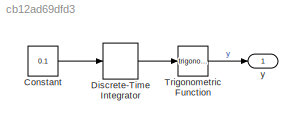
MODEL slx_cb12ad69dfd3
KIND model
CONFIG AbsTol = auto
CONFIG EnableMultiTasking = off
CONFIG FixedStep = auto
CONFIG MaxStep = auto
CONFIG MinStep = auto
CONFIG RelTol = 1e-3
CONFIG SampleTimeConstraint = Unconstrained
CONFIG Solver = FixedStepDiscrete
CONFIG SolverName = FixedStepDiscrete
CONFIG StartTime = 0.0
CONFIG StopTime = 100
BLOCK [Constant] Constant
  Value = 0.1
BLOCK [DiscreteIntegrator] Discrete-Time Integrator
  AttributesFormatString = State Name: %<StateIdentifier>
  ICPrevOutput = DiscIntNeverNeededParam
  ICPrevScaledInput = DiscIntNeverNeededParam
  InitialConditionSetting = State (most efficient)
  Ports = [1, 1]
  SampleTime = -1
  StateIdentifier = x
BLOCK [Trigonometry] Trigonometric Function
  Ports = [1, 1]
BLOCK [Outport] y
  IconDisplay = Port number
  OutDataTypeStr = double
  PortDimensions = 1
  SampleTime = [1,0]
  SamplingMode = Sample based
  SignalType = real
LINE Constant:1 -> Discrete-Time Integrator:1
LINE Discrete-Time Integrator:1 -> Trigonometric Function:1
LINE Trigonometric Function:1 -> y:1
